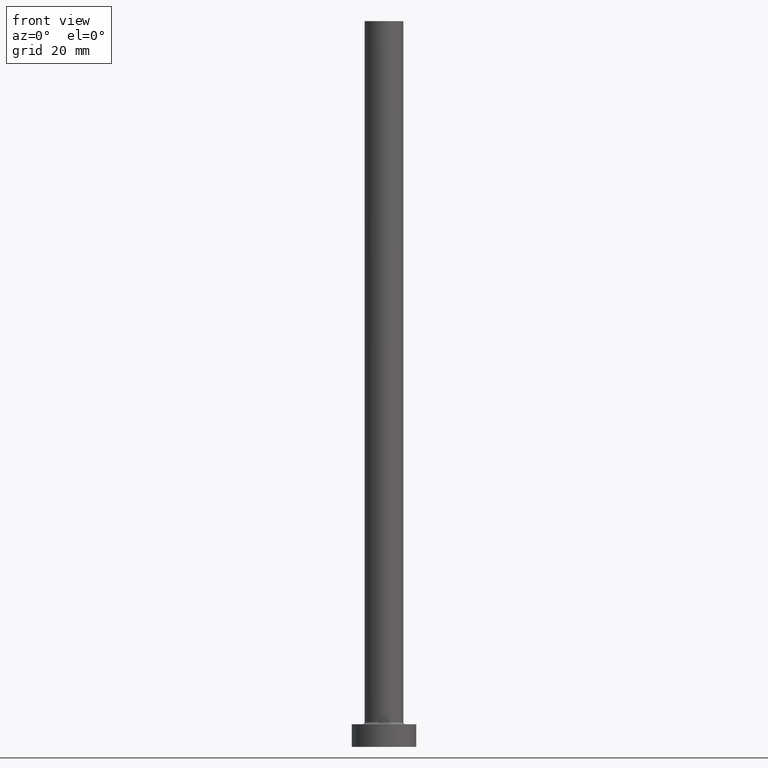
[diagram: clean part render]
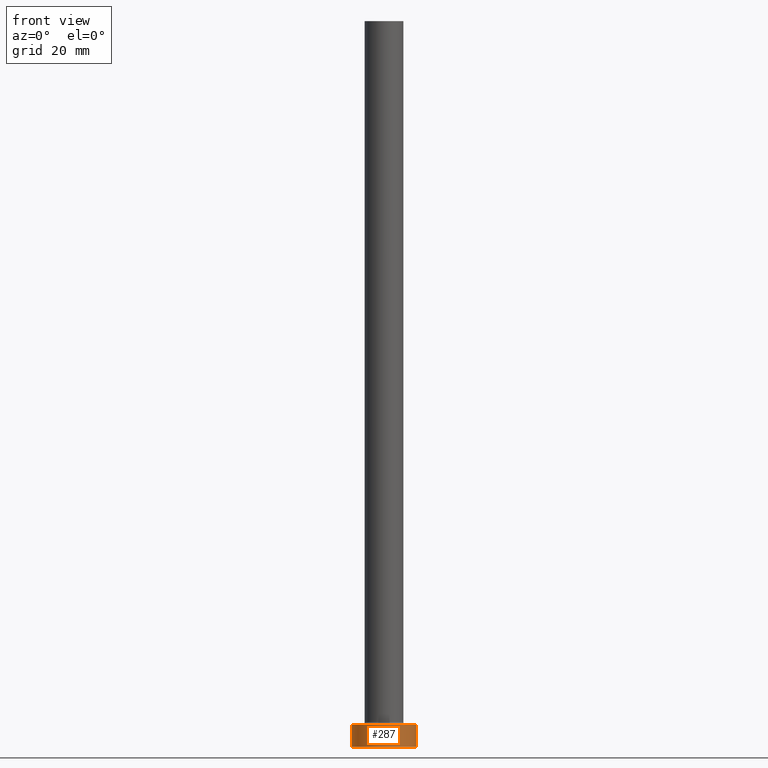
[diagram: same view with one face highlighted and labeled with its STEP entity id]
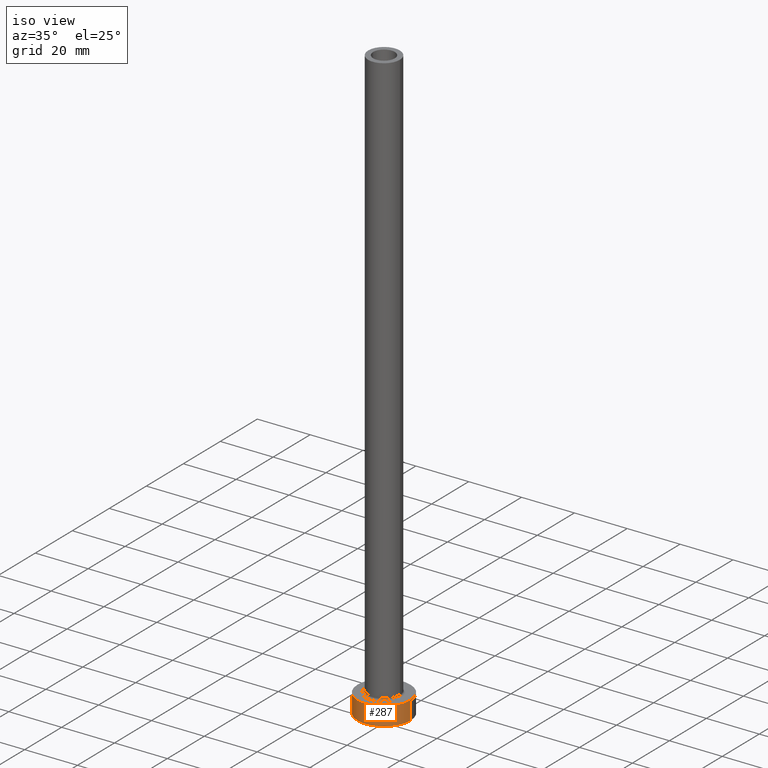
[diagram: same view with one face highlighted and labeled with its STEP entity id]
A machine part, front view. The second image highlights one B-rep face of the part: STEP entity #287.
A second angle (iso view) of the same face is appended — the face is thin or edge-on in the first view.
In plain terms, the highlighted cylindrical surface (edge-blend (fillet) strip) has radius 10 mm, axis along (-0, -0, -1).
Its self-contained STEP definition (entity closure, byte-faithful):
#11 = EDGE_CURVE ( 'NONE', #311, #433, #442, .T. ) ;
#18 = AXIS2_PLACEMENT_3D ( 'NONE', #140, #432, #227 ) ;
#20 = CARTESIAN_POINT ( 'NONE',  ( 10.00000000000000000, 1.224646799147353256E-15, 7.000000000000000000 ) ) ;
#25 = CARTESIAN_POINT ( 'NONE',  ( 0.000000000000000000, 0.000000000000000000, 0.000000000000000000 ) ) ;
#34 = VERTEX_POINT ( 'NONE', #177 ) ;
#37 = CIRCLE ( 'NONE', #412, 10.00000000000000000 ) ;
#42 = EDGE_LOOP ( 'NONE', ( #429, #375, #342, #336 ) ) ;
#54 = DIRECTION ( 'NONE',  ( 1.000000000000000000, 0.000000000000000000, 0.000000000000000000 ) ) ;
#59 = EDGE_CURVE ( 'NONE', #433, #190, #431, .T. ) ;
#82 = DIRECTION ( 'NONE',  ( -0.000000000000000000, -0.000000000000000000, -1.000000000000000000 ) ) ;
#121 = DIRECTION ( 'NONE',  ( 0.000000000000000000, 0.000000000000000000, 1.000000000000000000 ) ) ;
#140 = CARTESIAN_POINT ( 'NONE',  ( 0.000000000000000000, 0.000000000000000000, 7.000000000000000000 ) ) ;
#157 = DIRECTION ( 'NONE',  ( 1.000000000000000000, 0.000000000000000000, 0.000000000000000000 ) ) ;
#177 = CARTESIAN_POINT ( 'NONE',  ( 10.00000000000000000, 1.224646799147353256E-15, 7.000000000000000000 ) ) ;
#187 = DIRECTION ( 'NONE',  ( 0.000000000000000000, 0.000000000000000000, 1.000000000000000000 ) ) ;
#190 = VERTEX_POINT ( 'NONE', #269 ) ;
#210 = CARTESIAN_POINT ( 'NONE',  ( 0.000000000000000000, 0.000000000000000000, 7.000000000000000000 ) ) ;
#212 = DIRECTION ( 'NONE',  ( -0.000000000000000000, -0.000000000000000000, -1.000000000000000000 ) ) ;
#213 = AXIS2_PLACEMENT_3D ( 'NONE', #25, #187, #157 ) ;
#227 = DIRECTION ( 'NONE',  ( -1.000000000000000000, 0.000000000000000000, 0.000000000000000000 ) ) ;
#232 = VECTOR ( 'NONE', #82, 1000.000000000000000 ) ;
#238 = CARTESIAN_POINT ( 'NONE',  ( -10.00000000000000000, 0.000000000000000000, 7.000000000000000000 ) ) ;
#269 = CARTESIAN_POINT ( 'NONE',  ( 10.00000000000000000, 1.224646799147353256E-15, 0.000000000000000000 ) ) ;
#285 = CARTESIAN_POINT ( 'NONE',  ( -10.00000000000000000, 0.000000000000000000, 0.000000000000000000 ) ) ;
#287 = ADVANCED_FACE ( 'NONE', ( #350 ), #341, .T. ) ;
#311 = VERTEX_POINT ( 'NONE', #238 ) ;
#322 = CARTESIAN_POINT ( 'NONE',  ( -10.00000000000000000, 0.000000000000000000, 7.000000000000000000 ) ) ;
#336 = ORIENTED_EDGE ( 'NONE', *, *, #59, .T. ) ;
#341 = CYLINDRICAL_SURFACE ( 'NONE', #18, 10.00000000000000000 ) ;
#342 = ORIENTED_EDGE ( 'NONE', *, *, #11, .T. ) ;
#350 = FACE_OUTER_BOUND ( 'NONE', #42, .T. ) ;
#363 = LINE ( 'NONE', #20, #365 ) ;
#365 = VECTOR ( 'NONE', #212, 1000.000000000000000 ) ;
#367 = EDGE_CURVE ( 'NONE', #34, #190, #363, .T. ) ;
#375 = ORIENTED_EDGE ( 'NONE', *, *, #436, .F. ) ;
#412 = AXIS2_PLACEMENT_3D ( 'NONE', #210, #121, #54 ) ;
#429 = ORIENTED_EDGE ( 'NONE', *, *, #367, .F. ) ;
#431 = CIRCLE ( 'NONE', #213, 10.00000000000000000 ) ;
#432 = DIRECTION ( 'NONE',  ( -0.000000000000000000, -0.000000000000000000, -1.000000000000000000 ) ) ;
#433 = VERTEX_POINT ( 'NONE', #285 ) ;
#436 = EDGE_CURVE ( 'NONE', #311, #34, #37, .T. ) ;
#442 = LINE ( 'NONE', #322, #232 ) ;